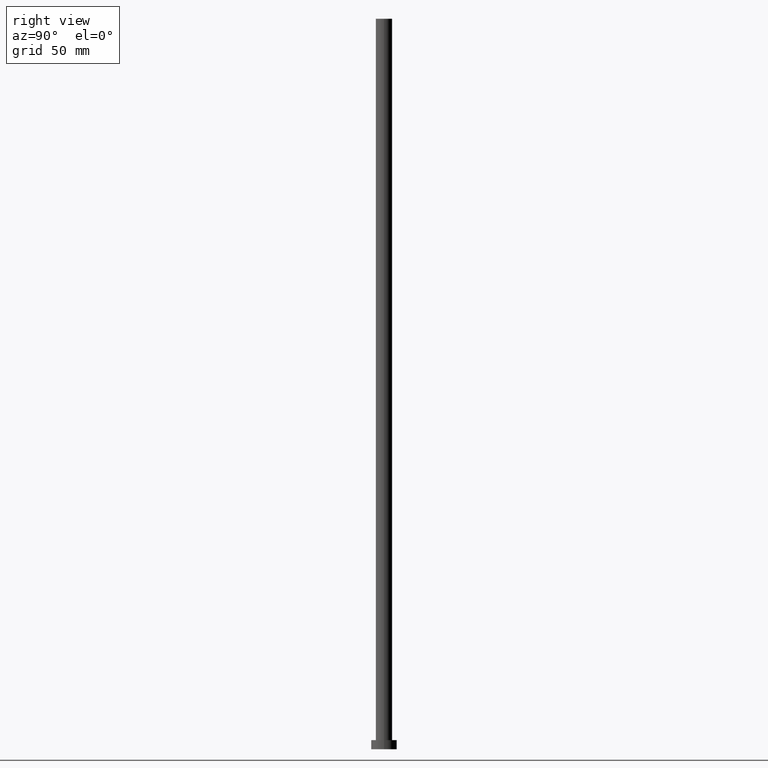
[diagram: clean part render]
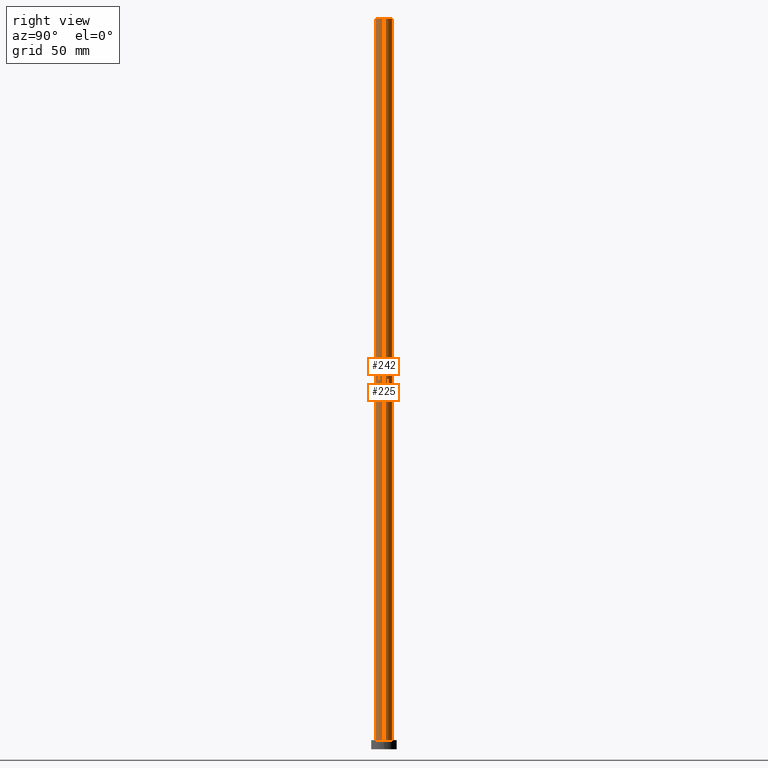
[diagram: same view with one multi-face feature highlighted, each face labeled with its STEP entity id]
A machine part, right view. The highlighted faces form ONE feature: a constant-radius fillet chain: 2 tangent blend faces with common blend radius 4.5 mm. The faces share edges in the B-rep.
Their STEP definitions:
[1] entity #242 (Cylinder):
#10 = VERTEX_POINT ( 'NONE', #69 ) ;
#13 = VECTOR ( 'NONE', #237, 1000.000000000000000 ) ;
#21 = LINE ( 'NONE', #75, #66 ) ;
#28 = CYLINDRICAL_SURFACE ( 'NONE', #220, 4.500000000000000888 ) ;
#43 = CIRCLE ( 'NONE', #91, 4.500000000000000888 ) ;
#61 = DIRECTION ( 'NONE',  ( 1.000000000000000000, 0.000000000000000000, 0.000000000000000000 ) ) ;
#66 = VECTOR ( 'NONE', #235, 1000.000000000000000 ) ;
#67 = ORIENTED_EDGE ( 'NONE', *, *, #130, .F. ) ;
#69 = CARTESIAN_POINT ( 'NONE',  ( 4.500000000000000888, 5.510910596163088569E-16, 400.0000000000000000 ) ) ;
#75 = CARTESIAN_POINT ( 'NONE',  ( 4.500000000000000888, 5.510910596163088569E-16, 400.0000000000000000 ) ) ;
#78 = CARTESIAN_POINT ( 'NONE',  ( 0.000000000000000000, 0.000000000000000000, 400.0000000000000000 ) ) ;
#83 = CIRCLE ( 'NONE', #227, 4.500000000000000888 ) ;
#91 = AXIS2_PLACEMENT_3D ( 'NONE', #156, #201, #61 ) ;
#112 = ORIENTED_EDGE ( 'NONE', *, *, #246, .F. ) ;
#117 = DIRECTION ( 'NONE',  ( 0.000000000000000000, 0.000000000000000000, 1.000000000000000000 ) ) ;
#118 = EDGE_CURVE ( 'NONE', #151, #166, #83, .T. ) ;
#120 = DIRECTION ( 'NONE',  ( -0.000000000000000000, -0.000000000000000000, -1.000000000000000000 ) ) ;
#122 = CARTESIAN_POINT ( 'NONE',  ( 0.000000000000000000, 0.000000000000000000, 5.000000000000000000 ) ) ;
#123 = CARTESIAN_POINT ( 'NONE',  ( -4.500000000000000888, 0.000000000000000000, 400.0000000000000000 ) ) ;
#130 = EDGE_CURVE ( 'NONE', #10, #166, #21, .T. ) ;
#141 = CARTESIAN_POINT ( 'NONE',  ( -4.500000000000000888, 0.000000000000000000, 400.0000000000000000 ) ) ;
#151 = VERTEX_POINT ( 'NONE', #216 ) ;
#156 = CARTESIAN_POINT ( 'NONE',  ( 0.000000000000000000, 0.000000000000000000, 400.0000000000000000 ) ) ;
#166 = VERTEX_POINT ( 'NONE', #215 ) ;
#167 = ORIENTED_EDGE ( 'NONE', *, *, #230, .T. ) ;
#172 = VERTEX_POINT ( 'NONE', #141 ) ;
#181 = FACE_OUTER_BOUND ( 'NONE', #206, .T. ) ;
#191 = DIRECTION ( 'NONE',  ( 1.000000000000000000, 0.000000000000000000, 0.000000000000000000 ) ) ;
#201 = DIRECTION ( 'NONE',  ( 0.000000000000000000, 0.000000000000000000, 1.000000000000000000 ) ) ;
#203 = ORIENTED_EDGE ( 'NONE', *, *, #118, .T. ) ;
#206 = EDGE_LOOP ( 'NONE', ( #67, #112, #167, #203 ) ) ;
#215 = CARTESIAN_POINT ( 'NONE',  ( 4.500000000000000888, 5.510910596163088569E-16, 5.000000000000000000 ) ) ;
#216 = CARTESIAN_POINT ( 'NONE',  ( -4.500000000000000888, 0.000000000000000000, 5.000000000000000000 ) ) ;
#217 = LINE ( 'NONE', #123, #13 ) ;
#220 = AXIS2_PLACEMENT_3D ( 'NONE', #78, #120, #238 ) ;
#227 = AXIS2_PLACEMENT_3D ( 'NONE', #122, #117, #191 ) ;
#230 = EDGE_CURVE ( 'NONE', #172, #151, #217, .T. ) ;
#235 = DIRECTION ( 'NONE',  ( -0.000000000000000000, -0.000000000000000000, -1.000000000000000000 ) ) ;
#237 = DIRECTION ( 'NONE',  ( -0.000000000000000000, -0.000000000000000000, -1.000000000000000000 ) ) ;
#238 = DIRECTION ( 'NONE',  ( -1.000000000000000000, 0.000000000000000000, 0.000000000000000000 ) ) ;
#242 = ADVANCED_FACE ( 'NONE', ( #181 ), #28, .T. ) ;
#246 = EDGE_CURVE ( 'NONE', #172, #10, #43, .T. ) ;
[2] entity #225 (Cylinder):
#8 = ORIENTED_EDGE ( 'NONE', *, *, #130, .T. ) ;
#10 = VERTEX_POINT ( 'NONE', #69 ) ;
#13 = VECTOR ( 'NONE', #237, 1000.000000000000000 ) ;
#21 = LINE ( 'NONE', #75, #66 ) ;
#36 = DIRECTION ( 'NONE',  ( 0.000000000000000000, 0.000000000000000000, 1.000000000000000000 ) ) ;
#50 = EDGE_CURVE ( 'NONE', #166, #151, #121, .T. ) ;
#66 = VECTOR ( 'NONE', #235, 1000.000000000000000 ) ;
#68 = FACE_OUTER_BOUND ( 'NONE', #239, .T. ) ;
#69 = CARTESIAN_POINT ( 'NONE',  ( 4.500000000000000888, 5.510910596163088569E-16, 400.0000000000000000 ) ) ;
#71 = AXIS2_PLACEMENT_3D ( 'NONE', #245, #36, #253 ) ;
#75 = CARTESIAN_POINT ( 'NONE',  ( 4.500000000000000888, 5.510910596163088569E-16, 400.0000000000000000 ) ) ;
#85 = EDGE_CURVE ( 'NONE', #10, #172, #180, .T. ) ;
#86 = ORIENTED_EDGE ( 'NONE', *, *, #85, .F. ) ;
#88 = ORIENTED_EDGE ( 'NONE', *, *, #230, .F. ) ;
#103 = CARTESIAN_POINT ( 'NONE',  ( 0.000000000000000000, 0.000000000000000000, 400.0000000000000000 ) ) ;
#109 = DIRECTION ( 'NONE',  ( -0.000000000000000000, -0.000000000000000000, -1.000000000000000000 ) ) ;
#121 = CIRCLE ( 'NONE', #71, 4.500000000000000888 ) ;
#123 = CARTESIAN_POINT ( 'NONE',  ( -4.500000000000000888, 0.000000000000000000, 400.0000000000000000 ) ) ;
#130 = EDGE_CURVE ( 'NONE', #10, #166, #21, .T. ) ;
#137 = DIRECTION ( 'NONE',  ( 1.000000000000000000, 0.000000000000000000, 0.000000000000000000 ) ) ;
#141 = CARTESIAN_POINT ( 'NONE',  ( -4.500000000000000888, 0.000000000000000000, 400.0000000000000000 ) ) ;
#151 = VERTEX_POINT ( 'NONE', #216 ) ;
#166 = VERTEX_POINT ( 'NONE', #215 ) ;
#172 = VERTEX_POINT ( 'NONE', #141 ) ;
#180 = CIRCLE ( 'NONE', #200, 4.500000000000000888 ) ;
#188 = CARTESIAN_POINT ( 'NONE',  ( 0.000000000000000000, 0.000000000000000000, 400.0000000000000000 ) ) ;
#200 = AXIS2_PLACEMENT_3D ( 'NONE', #103, #233, #137 ) ;
#204 = ORIENTED_EDGE ( 'NONE', *, *, #50, .T. ) ;
#215 = CARTESIAN_POINT ( 'NONE',  ( 4.500000000000000888, 5.510910596163088569E-16, 5.000000000000000000 ) ) ;
#216 = CARTESIAN_POINT ( 'NONE',  ( -4.500000000000000888, 0.000000000000000000, 5.000000000000000000 ) ) ;
#217 = LINE ( 'NONE', #123, #13 ) ;
#221 = DIRECTION ( 'NONE',  ( -1.000000000000000000, 0.000000000000000000, 0.000000000000000000 ) ) ;
#225 = ADVANCED_FACE ( 'NONE', ( #68 ), #228, .T. ) ;
#228 = CYLINDRICAL_SURFACE ( 'NONE', #232, 4.500000000000000888 ) ;
#230 = EDGE_CURVE ( 'NONE', #172, #151, #217, .T. ) ;
#232 = AXIS2_PLACEMENT_3D ( 'NONE', #188, #109, #221 ) ;
#233 = DIRECTION ( 'NONE',  ( 0.000000000000000000, 0.000000000000000000, 1.000000000000000000 ) ) ;
#235 = DIRECTION ( 'NONE',  ( -0.000000000000000000, -0.000000000000000000, -1.000000000000000000 ) ) ;
#237 = DIRECTION ( 'NONE',  ( -0.000000000000000000, -0.000000000000000000, -1.000000000000000000 ) ) ;
#239 = EDGE_LOOP ( 'NONE', ( #86, #8, #204, #88 ) ) ;
#245 = CARTESIAN_POINT ( 'NONE',  ( 0.000000000000000000, 0.000000000000000000, 5.000000000000000000 ) ) ;
#253 = DIRECTION ( 'NONE',  ( 1.000000000000000000, 0.000000000000000000, 0.000000000000000000 ) ) ;